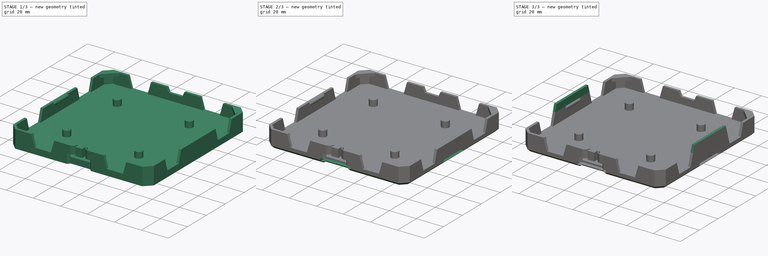
[diagram: build sequence overview — one tinted view per stage of 3, left to right]
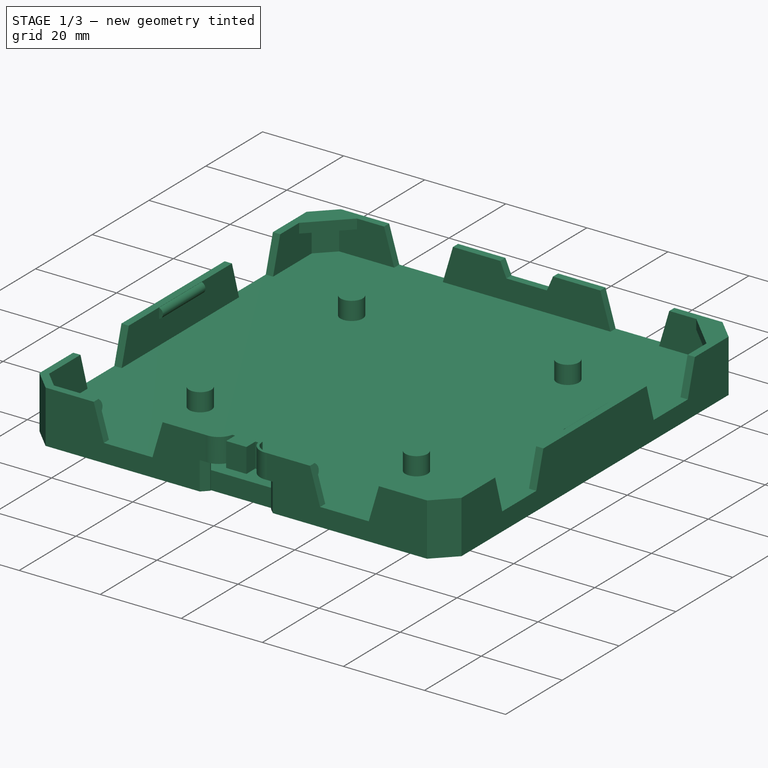
[diagram: stage 1 of 3 — iso view after this stage's code; geometry added in this stage tinted green]
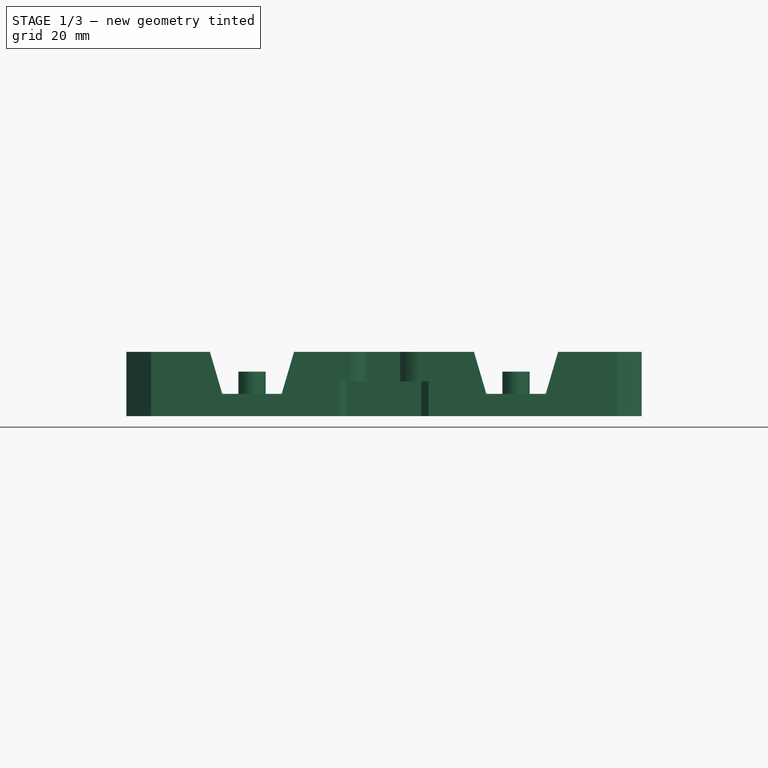
[diagram: stage 1 of 3 — front view after this stage's code; geometry added in this stage tinted green]
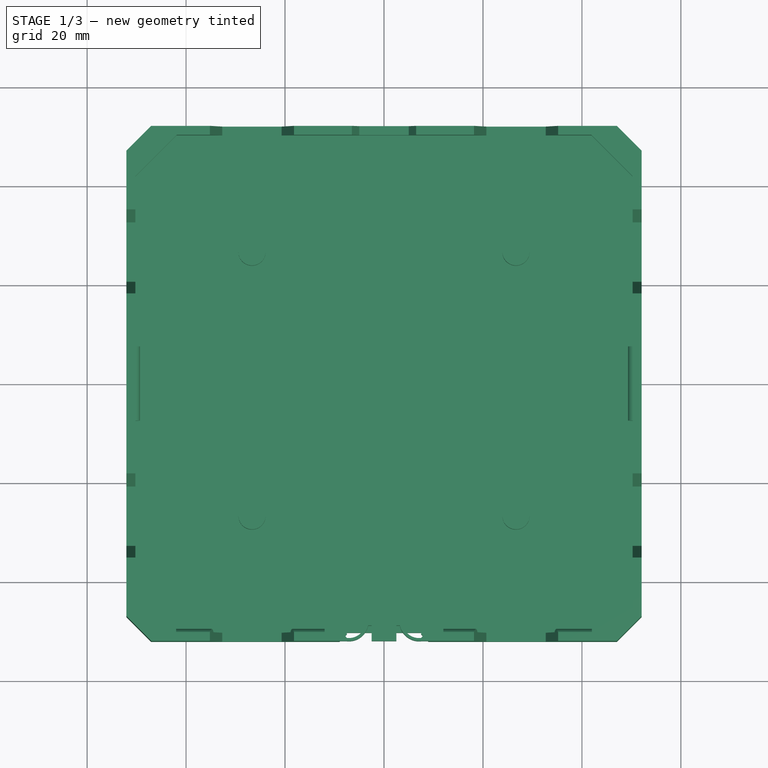
[diagram: stage 1 of 3 — top view after this stage's code; geometry added in this stage tinted green]
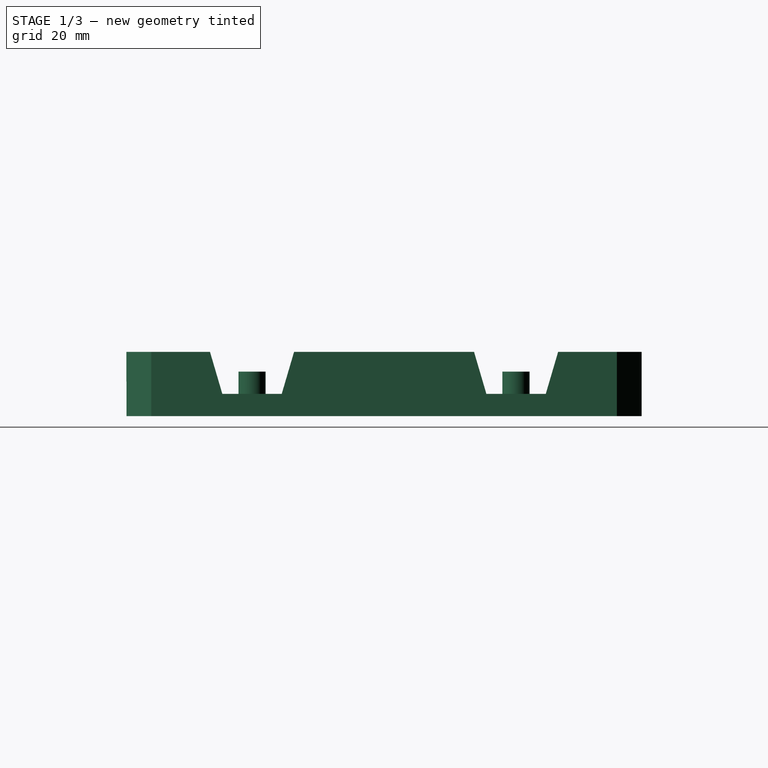
[diagram: stage 1 of 3 — right view after this stage's code; geometry added in this stage tinted green]
FCSTD DOCUMENT  (FreeCAD 0.21R33771 (Git))
Label: 3DFDM_Base
License: All rights reserved
LicenseURL: https://en.wikipedia.org/wiki/All_rights_reserved
objects: Sketcher::SketchObject×18, PartDesign::Pad×7, PartDesign::Pocket×6, PartDesign::Mirrored×5, PartDesign::Plane×3, PartDesign::PolarPattern×2, PartDesign::Body×1, PartDesign::SubtractivePipe×1
note: 57 computed .brp shape members not serialized (recipe doc carries the construction recipe); baked Part::Feature solids carry a one-line shape summary decoded from their .brp

FEATURE [Sketcher::SketchObject] Sketch
  FullyConstrained = true
  MapMode = 5
  Support = -> [XY_Plane]
  sketch-geometry (9):
    g0: LineSegment StartX=-52.05 StartY=-47.05 StartZ=0 EndX=-52.05 EndY=47.05 EndZ=0
    g1: LineSegment StartX=-47.05 StartY=52.05 StartZ=0 EndX=47.05 EndY=52.05 EndZ=0
    g2: LineSegment StartX=52.05 StartY=47.05 StartZ=0 EndX=52.05 EndY=-47.05 EndZ=0
    g3: LineSegment StartX=47.05 StartY=-52.05 StartZ=0 EndX=-47.05 EndY=-52.05 EndZ=0
    g4: GeomPoint X=0 Y=0 Z=0
    g5: LineSegment StartX=-47.05 StartY=52.05 StartZ=0 EndX=-52.05 EndY=47.05 EndZ=0
    g6: LineSegment StartX=-52.05 StartY=-47.05 StartZ=0 EndX=-47.05 EndY=-52.05 EndZ=0
    g7: LineSegment StartX=47.05 StartY=52.05 StartZ=0 EndX=52.05 EndY=47.05 EndZ=0
    g8: LineSegment StartX=52.05 StartY=-47.05 StartZ=0 EndX=47.05 EndY=-52.05 EndZ=0
  constraints (23):
    c: Horizontal(g1)
    c: Horizontal(g3)
    c: Vertical(g0)
    c: Vertical(g2)
    c: Coincident(g4,g-1)
    c: Coincident(g1,g5)
    c: Coincident(g0,g5)
    c: Coincident(g1,g7)
    c: Coincident(g2,g7)
    c: Coincident(g2,g8)
    c: Coincident(g3,g8)
    c: Coincident(g3,g6)
    c: Coincident(g0,g6)
    c: DistanceX(g0,g2) = 104.1
    c: Equal(g1,g2)
    c: Equal(g2,g3)
    c: Equal(g3,g0)
    c: DistanceY(g0,g1) = 5
    c: DistanceX(g0,g1) = 5
    c: Symmetric(g3,g1,g-1)
    c: Symmetric(g0,g2,g-2)
    c: Equal(g5,g6)
    c: Equal(g6,g8)
FEATURE [PartDesign::Pad] Pad
  Direction = (0,0,1)
  Length = 10
  Length2 = 3
  Profile = -> Sketch
  ReferenceAxis = -> Sketch [N_Axis]
  Type = 4
FEATURE [Sketcher::SketchObject] Sketch001
  FullyConstrained = true
  MapMode = 5
  Support = -> [XY_Plane]
  sketch-geometry (25):
    g0: LineSegment StartX=-45 StartY=-37.9289 StartZ=0 EndX=-45 EndY=37.9289 EndZ=0
    g1: LineSegment StartX=-37.9289 StartY=45 StartZ=0 EndX=37.9289 EndY=45 EndZ=0
    g2: LineSegment StartX=45 StartY=37.9289 StartZ=0 EndX=45 EndY=-37.9289 EndZ=0
    g3: LineSegment StartX=37.9289 StartY=-45 StartZ=0 EndX=-37.9289 EndY=-45 EndZ=0
    g4: GeomPoint X=0 Y=0 Z=0
    g5: LineSegment StartX=37.9289 StartY=45 StartZ=0 EndX=52.0711 EndY=59.1421 EndZ=0
    g6: LineSegment StartX=52.0711 StartY=59.1421 StartZ=0 EndX=59.1421 EndY=52.0711 EndZ=0
    g7: LineSegment StartX=59.1421 StartY=52.0711 StartZ=0 EndX=45 EndY=37.9289 EndZ=0
    g8: LineSegment StartX=-45 StartY=-37.9289 StartZ=0 EndX=-59.1421 EndY=-52.0711 EndZ=0
    g9: LineSegment StartX=-59.1421 StartY=-52.0711 StartZ=0 EndX=-52.0711 EndY=-59.1421 EndZ=0
    g10: LineSegment StartX=-52.0711 StartY=-59.1421 StartZ=0 EndX=-37.9289 EndY=-45 EndZ=0
    g11: LineSegment StartX=37.9289 StartY=-45 StartZ=0 EndX=52.0711 EndY=-59.1421 EndZ=0
    g12: LineSegment StartX=52.0711 StartY=-59.1421 StartZ=0 EndX=59.1421 EndY=-52.0711 EndZ=0
    g13: LineSegment StartX=59.1421 StartY=-52.0711 StartZ=0 EndX=45 EndY=-37.9289 EndZ=0
    g14: LineSegment StartX=-45 StartY=37.9289 StartZ=0 EndX=-59.1421 EndY=52.0711 EndZ=0
    g15: LineSegment StartX=-59.1421 StartY=52.0711 StartZ=0 EndX=-52.0711 EndY=59.1421 EndZ=0
    g16: LineSegment StartX=-52.0711 StartY=59.1421 StartZ=0 EndX=-37.9289 EndY=45 EndZ=0
    g17: LineSegment StartX=-37.9289 StartY=45 StartZ=0 EndX=45 EndY=-37.9289 EndZ=0
    g18: LineSegment StartX=37.9289 StartY=-45 StartZ=0 EndX=-45 EndY=37.9289 EndZ=0
    g19: LineSegment StartX=-45 StartY=-37.9289 StartZ=0 EndX=37.9289 EndY=45 EndZ=0
    g20: LineSegment StartX=45 StartY=37.9289 StartZ=0 EndX=-37.9289 EndY=-45 EndZ=0
    g21: GeomPoint X=0 Y=7.07107 Z=0
    g22: GeomPoint X=7.07107 Y=0 Z=0
    g23: GeomPoint X=-7.07107 Y=1.2e-15 Z=0
    g24: GeomPoint X=0 Y=-7.07107 Z=0
  constraints (64):
    c: Horizontal(g1)
    c: Horizontal(g3)
    c: Vertical(g0)
    c: Vertical(g2)
    c: Coincident(g4,g-1)
    c: Coincident(g6,g5)
    c: Coincident(g7,g6)
    c: Coincident(g9,g8)
    c: Coincident(g10,g9)
    c: Coincident(g12,g11)
    c: Coincident(g13,g12)
    c: Coincident(g15,g14)
    c: Coincident(g16,g15)
    c: Coincident(g17,g16)
    c: Coincident(g17,g13)
    c: Coincident(g18,g14)
    c: Coincident(g19,g8)
    c: Coincident(g19,g5)
    c: Coincident(g7,g20)
    c: Coincident(g11,g18)
    c: Coincident(g10,g20)
    c: Parallel(g14,g16)
    c: Parallel(g16,g17)
    c: Parallel(g17,g18)
    c: Parallel(g18,g11)
    c: Parallel(g11,g13)
    c: Parallel(g5,g7)
    c: Parallel(g7,g20)
    c: Parallel(g20,g19)
    c: Parallel(g19,g8)
    c: Parallel(g8,g10)
    c: Perpendicular(g5,g6)
    c: Perpendicular(g14,g15)
    c: Perpendicular(g12,g11)
    c: Perpendicular(g8,g9)
    c: PointOnObject(g21,g19)
    c: PointOnObject(g22,g20)
    c: PointOnObject(g23,g19)
    c: PointOnObject(g24,g18)
    c: PointOnObject(g21,g17)
    c: PointOnObject(g21,g-2)
    c: PointOnObject(g22,g17)
    c: PointOnObject(g22,g-1)
    c: PointOnObject(g24,g20)
    c: PointOnObject(g23,g18)
    c: Symmetric(g21,g24,g4)
    c: Angle(g-1,g19) = 0.785398
    c: Horizontal(g15,g5)
    c: Distance(g6) = 10
    c: Distance(g7) = 20
    c: Equal(g13,g10)
    c: Equal(g10,g7)
    c: Coincident(g1,g5)
    c: Coincident(g2,g7)
    c: Coincident(g0,g14)
    c: Coincident(g1,g16)
    c: Coincident(g3,g11)
    c: Coincident(g2,g13)
    c: Coincident(g3,g10)
    c: Coincident(g0,g8)
    c: DistanceX(g0,g2) = 90
    c: DistanceY(g3,g1) = 90
    c: Equal(g13,g11)
    c: Equal(g8,g10)
FEATURE [PartDesign::Plane] DatumPlane
  AttachmentOffset = pos=(0,0,10) rot=(0,0,1;0rad)
  Length = 124.922
  MapMode = 5
  Placement = pos=(0,0,10) rot=(0,0,1;0rad)
  ResizeMode = 0
  Support = -> [XY_Plane]
  Width = 124.941
FEATURE [Sketcher::SketchObject] Sketch002
  FullyConstrained = true
  MapMode = 5
  Placement = pos=(0,0,10) rot=(0,0,1;0rad)
  Support = -> [DatumPlane]
  sketch-geometry (9):
    g0: LineSegment StartX=-50.25 StartY=-46.25 StartZ=0 EndX=-50.25 EndY=46.25 EndZ=0
    g1: LineSegment StartX=-46.25 StartY=50.25 StartZ=0 EndX=46.25 EndY=50.25 EndZ=0
    g2: LineSegment StartX=50.25 StartY=46.25 StartZ=0 EndX=50.25 EndY=-46.25 EndZ=0
    g3: LineSegment StartX=46.25 StartY=-50.25 StartZ=0 EndX=-46.25 EndY=-50.25 EndZ=0
    g4: GeomPoint X=0 Y=0 Z=0
    g5: LineSegment StartX=-50.25 StartY=46.25 StartZ=0 EndX=-46.25 EndY=50.25 EndZ=0
    g6: LineSegment StartX=46.25 StartY=50.25 StartZ=0 EndX=50.25 EndY=46.25 EndZ=0
    g7: LineSegment StartX=50.25 StartY=-46.25 StartZ=0 EndX=46.25 EndY=-50.25 EndZ=0
    g8: LineSegment StartX=-50.25 StartY=-46.25 StartZ=0 EndX=-46.25 EndY=-50.25 EndZ=0
  constraints (23):
    c: Horizontal(g1)
    c: Horizontal(g3)
    c: Vertical(g2)
    c: Coincident(g4,g-1)
    c: Coincident(g0,g5)
    c: Coincident(g1,g5)
    c: Coincident(g1,g6)
    c: Coincident(g2,g7)
    c: Coincident(g3,g7)
    c: Coincident(g3,g8)
    c: Coincident(g0,g8)
    c: Equal(g5,g6)
    c: Equal(g6,g7)
    c: Equal(g7,g8)
    c: Coincident(g2,g6)
    c: DistanceX(g0,g2) = 100.5
    c: Symmetric(g0,g2,g-2)
    c: Symmetric(g0,g0,g-1)
    c: Equal(g0,g1)
    c: Equal(g1,g2)
    c: Equal(g2,g3)
    c: DistanceY(g0,g1) = 4
    c: DistanceX(g0,g1) = 4
FEATURE [PartDesign::Pocket] Pocket001  label="Shell"
  BaseFeature = -> Pad
  Direction = (0,0,-1)
  Length = 8.5
  Length2 = 5
  Profile = -> Sketch002
  ReferenceAxis = -> Sketch002 [N_Axis]
  Type = 0
FEATURE [Sketcher::SketchObject] Sketch003
  FullyConstrained = true
  MapMode = 5
  Support = -> [XY_Plane]
  sketch-geometry (2):
    g0: Circle CenterX=-26.67 CenterY=26.67 CenterZ=0 NormalX=0 NormalY=0 NormalZ=1 AngleXU=0 Radius=2.75
    g1: Circle CenterX=-26.67 CenterY=-26.67 CenterZ=0 NormalX=0 NormalY=0 NormalZ=1 AngleXU=0 Radius=2.75
  constraints (5):
    c: Equal(g0,g1)
    c: Diameter(g0) = 5.5
    c: Symmetric(g0,g1,g-1)
    c: DistanceX(g0,g-1) = 26.67
    c: DistanceY(g1,g0) = 53.34
FEATURE [Sketcher::SketchObject] Sketch004
  FullyConstrained = true
  MapMode = 2
  Placement = pos=(0,0,10) rot=(0,0,1;0rad)
  Support = -> [DatumPlane]
  sketch-geometry (8):
    g0: LineSegment StartX=-7.5 StartY=-51.45 StartZ=0 EndX=-7.5 EndY=-55.25 EndZ=0
    g1: LineSegment StartX=-7.5 StartY=-55.25 StartZ=0 EndX=7.5 EndY=-55.25 EndZ=0
    g2: LineSegment StartX=7.5 StartY=-55.25 StartZ=0 EndX=7.5 EndY=-51.45 EndZ=0
    g3: LineSegment StartX=7.5 StartY=-50.25 StartZ=0 EndX=-7.5 EndY=-50.25 EndZ=0
    g4: LineSegment StartX=-7.5 StartY=-51.45 StartZ=0 EndX=-8.5 EndY=-50.25 EndZ=0
    g5: LineSegment StartX=-8.5 StartY=-50.25 StartZ=0 EndX=-7.5 EndY=-50.25 EndZ=0
    g6: LineSegment StartX=7.5 StartY=-51.45 StartZ=0 EndX=8.5 EndY=-50.25 EndZ=0
    g7: LineSegment StartX=8.5 StartY=-50.25 StartZ=0 EndX=7.5 EndY=-50.25 EndZ=0
  constraints (23):
    c: Coincident(g0,g1)
    c: Coincident(g1,g2)
    c: Horizontal(g1)
    c: Vertical(g0)
    c: Vertical(g2)
    c: DistanceY(g2,g3) = 5
    c: DistanceX(g3,g3) = 15
    c: DistanceY(g3,g-1) = 50.25
    c: Symmetric(g3,g3,g-2)
    c: Coincident(g5,g4)
    c: Coincident(g5,g3)
    c: Horizontal(g5)
    c: Coincident(g7,g6)
    c: Horizontal(g7)
    c: Equal(g7,g5)
    c: DistanceX(g5,g5) = 1
    c: DistanceY(g4,g3) = 1.2
    c: Horizontal(g4,g6)
    c: Coincident(g0,g4)
    c: Coincident(g2,g6)
    c: Vertical(g0,g3)
    c: Vertical(g2,g3)
    c: Coincident(g3,g7)
FEATURE [PartDesign::Pocket] Pocket002  label="Pocket_for_button"
  BaseFeature = -> Pocket001
  Direction = (0,0,-1)
  Length = 6
  Length2 = 5
  Profile = -> Sketch004
  ReferenceAxis = -> Sketch004 [N_Axis]
  Refine = true
  Type = 0
FEATURE [Sketcher::SketchObject] Sketch005
  FullyConstrained = true
  MapMode = 5
  Placement = pos=(0,0,10) rot=(0,0,1;0rad)
  Support = -> [DatumPlane]
  sketch-geometry (13):
    g0: LineSegment StartX=-2.5 StartY=-48.9 StartZ=0 EndX=-2.5 EndY=-52.05 EndZ=0
    g1: LineSegment StartX=2.5 StartY=-48.9 StartZ=0 EndX=2.5 EndY=-52.05 EndZ=0
    g2: LineSegment StartX=-2.5 StartY=-52.05 StartZ=0 EndX=2.5 EndY=-52.05 EndZ=0
    g3: LineSegment StartX=7.5 StartY=-51.4462 StartZ=0 EndX=7.5 EndY=-52.05 EndZ=0
    g4: LineSegment StartX=-7.5 StartY=-51.4462 StartZ=0 EndX=-7.5 EndY=-52.05 EndZ=0
    g5: LineSegment StartX=-2.5 StartY=-48.9 StartZ=0 EndX=-3.2 EndY=-48.9 EndZ=0
    g6: LineSegment StartX=2.5 StartY=-48.9 StartZ=0 EndX=3.2 EndY=-48.9 EndZ=0
    g7: LineSegment StartX=-3.71859 StartY=-48.1 StartZ=0 EndX=3.71859 EndY=-48.1 EndZ=0
    g8: ArcOfCircle CenterX=-7.08983 CenterY=-48.1 CenterZ=0 NormalX=0 NormalY=0 NormalZ=1 AngleXU=0 Radius=3.97124 StartAngle=4.60892 EndAngle=6.08035
    g9: ArcOfCircle CenterX=-7.08983 CenterY=-48.1 CenterZ=0 NormalX=0 NormalY=0 NormalZ=1 AngleXU=0 Radius=3.37124 StartAngle=4.59042 EndAngle=6.28319
    g10: ArcOfCircle CenterX=7.08983 CenterY=-48.1 CenterZ=0 NormalX=0 NormalY=0 NormalZ=1 AngleXU=0 Radius=3.97124 StartAngle=3.34443 EndAngle=4.81586
    g11: ArcOfCircle CenterX=7.08983 CenterY=-48.1 CenterZ=0 NormalX=0 NormalY=0 NormalZ=1 AngleXU=0 Radius=3.37124 StartAngle=3.14159 EndAngle=4.83436
    g12: LineSegment StartX=-4.35412 StartY=-50.9787 StartZ=0 EndX=-4.76745 EndY=-50.5437 EndZ=0
  constraints (40):
    c: Vertical(g0)
    c: Vertical(g1)
    c: Symmetric(g2,g2,g-2)
    c: DistanceX(g2,g2) = 5
    c: Symmetric(g4,g3,g-2)
    c: DistanceY(g3,g-1) = 52.05
    c: Vertical(g3)
    c: Vertical(g4)
    c: DistanceX(g4,g3) = 15
    c: Horizontal(g5)
    c: Horizontal(g6)
    c: Coincident(g1,g6)
    c: Coincident(g0,g5)
    c: Equal(g5,g6)
    c: DistanceY(g6,g7) = 0.8
    c: Horizontal(g1,g0)
    c: Coincident(g0,g2)
    c: Symmetric(g7,g7,g-2)
    c: DistanceY(g7,g-1) = 48.1
    c: Horizontal(g0,g4)
    c: Coincident(g1,g2)
    c: DistanceX(g5,g5) = 0.7
    c: Coincident(g9,g8)
    c: Coincident(g11,g10)
    c: Diameter(g8) = 7.94248
    c: Coincident(g8,g4)
    c: Coincident(g9,g7)
    c: Coincident(g10,g3)
    c: Coincident(g11,g7)
    c: Perpendicular(g9,g7)
    c: Coincident(g8,g5)
    c: Perpendicular(g11,g7)
    c: Coincident(g6,g10)
    c: PointOnObject(g12,g8)
    c: PointOnObject(g12,g9)
    c: Perpendicular(g8,g12)
    c: Distance(g12) = 0.6
    c: Coincident(g4,g9)
    c: Coincident(g3,g11)
    c: DistanceX(g12) = -4.76745
FEATURE [PartDesign::Pad] Pad002  label="Button mechanism"
  BaseFeature = -> Pocket002
  Direction = (0,0,1)
  Length = 6
  Length2 = 10
  Profile = -> Sketch005
  ReferenceAxis = -> Sketch005 [N_Axis]
  Refine = true
  Reversed = true
  Type = 0
FEATURE [Sketcher::SketchObject] Sketch008
  FullyConstrained = true
  MapMode = 5
  Placement = pos=(0,0,10) rot=(0,0,1;0rad)
  Support = -> [DatumPlane]
  sketch-geometry (4):
    g0: LineSegment StartX=-52.05 StartY=40.05 StartZ=0 EndX=-40.05 EndY=52.05 EndZ=0
    g1: LineSegment StartX=-40.05 StartY=52.05 StartZ=0 EndX=-47.05 EndY=52.05 EndZ=0
    g2: LineSegment StartX=-47.05 StartY=52.05 StartZ=0 EndX=-52.05 EndY=47.05 EndZ=0
    g3: LineSegment StartX=-52.05 StartY=47.05 StartZ=0 EndX=-52.05 EndY=40.05 EndZ=0
  constraints (12):
    c: Coincident(g1,g0)
    c: Horizontal(g1)
    c: Coincident(g2,g1)
    c: Coincident(g3,g2)
    c: Coincident(g3,g0)
    c: Vertical(g3)
    c: Equal(g1,g3)
    c: Angle(g0,g3) = 0.785398
    c: DistanceY(g-1,g0) = 52.05
    c: DistanceX(g0,g-1) = 52.05
    c: DistanceY(g2,g1) = 5
    c: DistanceX(g1,g1) = 7
FEATURE [PartDesign::Pad] Pad003  label="Corner_z_holder"
  BaseFeature = -> Pad002
  Direction = (0,0,1)
  Length = 2.4
  Length2 = 10
  Profile = -> Sketch008
  ReferenceAxis = -> Sketch008 [N_Axis]
  Refine = true
  Reversed = true
  Type = 0
FEATURE [PartDesign::Mirrored] Mirrored001
  BaseFeature = -> Pad003
  MirrorPlane = -> Sketch008 [V_Axis]
  Originals = -> [Pad003]
  Refine = true
FEATURE [Sketcher::SketchObject] Sketch009
  FullyConstrained = true
  MapMode = 5
  Placement = pos=(0,0,0) rot=(1,0,0;1.5708rad)
  Support = -> [XZ_Plane]
  sketch-geometry (2):
    g0: Circle CenterX=-50.6 CenterY=8.7 CenterZ=0 NormalX=0 NormalY=0 NormalZ=1 AngleXU=0 Radius=1.3
    g1: GeomPoint X=-50.6 Y=10 Z=0
  constraints (5):
    c: DistanceX(g0,g-1) = 50.6
    c: Diameter(g0) = 2.6
    c: PointOnObject(g1,g0)
    c: Vertical(g1,g0)
    c: DistanceY(g-1,g1) = 10
FEATURE [PartDesign::Plane] DatumPlane001
  AttachmentOffset = pos=(0,0,27) rot=(0,0,1;0rad)
  Length = 118.549
  MapMode = 5
  Placement = pos=(27,-6e-15,6e-15) rot=(0.57735,0.57735,0.57735;2.0944rad)
  ResizeMode = 0
  Support = -> [YZ_Plane]
  Width = 64.4304
FEATURE [Sketcher::SketchObject] Sketch010
  FullyConstrained = true
  MapMode = 5
  Placement = pos=(27,-6e-15,6e-15) rot=(0.57735,0.57735,0.57735;2.0944rad)
  Support = -> [DatumPlane001]
  sketch-geometry (3):
    g0: ArcOfCircle CenterX=-50.9 CenterY=8.7 CenterZ=0 NormalX=0 NormalY=0 NormalZ=1 AngleXU=0 Radius=1.3 StartAngle=4.71239 EndAngle=7.85398
    g1: GeomPoint X=-50.9 Y=10 Z=0
    g2: LineSegment StartX=-50.9 StartY=10 StartZ=0 EndX=-50.9 EndY=7.4 EndZ=0
  constraints (8):
    c: Vertical(g1,g0)
    c: DistanceY(g-1,g1) = 10
    c: Diameter(g0) = 2.6
    c: DistanceX(g0,g-1) = 50.9
    c: Coincident(g2,g1)
    c: Vertical(g2)
    c: Coincident(g0,g2)
    c: Coincident(g0,g2)
FEATURE [PartDesign::Pad] Pad005  label="Wall_z_holder"
  BaseFeature = -> Mirrored001
  Direction = (1,-1e-16,1e-16)
  Length = 30
  Length2 = 10
  Midplane = true
  Profile = -> Sketch010
  ReferenceAxis = -> Sketch010 [N_Axis]
  Refine = true
  Type = 0
FEATURE [PartDesign::Mirrored] Mirrored003
  BaseFeature = -> Pad005
  MirrorPlane = -> YZ_Plane
  Originals = -> [Pad005]
FEATURE [Sketcher::SketchObject] Sketch011
  FullyConstrained = true
  MapMode = 5
  Placement = pos=(0,0,0) rot=(0.57735,0.57735,0.57735;2.0944rad)
  Support = -> [YZ_Plane]
  sketch-geometry (10):
    g0: LineSegment StartX=-35.18 StartY=10 StartZ=0 EndX=-32.68 EndY=1.5 EndZ=0
    g1: LineSegment StartX=-32.68 StartY=1.5 StartZ=0 EndX=-20.68 EndY=1.5 EndZ=0
    g2: LineSegment StartX=-20.68 StartY=1.5 StartZ=0 EndX=-18.18 EndY=10 EndZ=0
    g3: LineSegment StartX=-18.18 StartY=10 StartZ=0 EndX=-35.18 EndY=10 EndZ=0
    g4: LineSegment StartX=18.18 StartY=10 StartZ=0 EndX=35.18 EndY=10 EndZ=0
    g5: LineSegment StartX=35.18 StartY=10 StartZ=0 EndX=32.68 EndY=1.5 EndZ=0
    g6: LineSegment StartX=32.68 StartY=1.5 StartZ=0 EndX=20.68 EndY=1.5 EndZ=0
    g7: LineSegment StartX=20.68 StartY=1.5 StartZ=0 EndX=18.18 EndY=10 EndZ=0
    g8: GeomPoint X=-26.68 Y=1.5 Z=0
    g9: GeomPoint X=26.68 Y=1.5 Z=0
  constraints (26):
    c: Coincident(g1,g0)
    c: Horizontal(g1)
    c: Coincident(g2,g1)
    c: Coincident(g3,g2)
    c: Coincident(g3,g0)
    c: Horizontal(g3)
    c: Equal(g2,g0)
    c: DistanceY(g-1,g2) = 10
    c: DistanceY(g-1,g1) = 1.5
    c: DistanceX(g1,g1) = 12
    c: DistanceX(g3,g3) = 17
    c: Horizontal(g4)
    c: Coincident(g5,g4)
    c: Coincident(g6,g5)
    c: Coincident(g7,g6)
    c: Coincident(g7,g4)
    c: Equal(g5,g7)
    c: Horizontal(g4,g2)
    c: Equal(g4,g3)
    c: Equal(g1,g6)
    c: Horizontal(g6)
    c: Symmetric(g6,g5,g9)
    c: Symmetric(g1,g0,g8)
    c: Symmetric(g8,g9,g-2)
    c: DistanceX(g8,g-1) = 26.68
    c: Angle(g2,g1) = 1.85685
FEATURE [PartDesign::Pocket] Pocket005  label="Interface_opening"
  BaseFeature = -> Mirrored003
  Direction = (-1,2e-16,-3e-16)
  Length = 5
  Length2 = 5
  Profile = -> Sketch011
  ReferenceAxis = -> Sketch011 [N_Axis]
  Refine = true
  Reversed = true
  Type = 1
FEATURE [Sketcher::SketchObject] Sketch012
  FullyConstrained = true
  MapMode = 5
  Placement = pos=(0,0,0) rot=(1,0,0;1.5708rad)
  Support = -> [XZ_Plane]
  sketch-geometry (4):
    g0: LineSegment StartX=-6.5 StartY=10 StartZ=0 EndX=-5 EndY=6.5 EndZ=0
    g1: LineSegment StartX=-5 StartY=6.5 StartZ=0 EndX=5 EndY=6.5 EndZ=0
    g2: LineSegment StartX=5 StartY=6.5 StartZ=0 EndX=6.5 EndY=10 EndZ=0
    g3: LineSegment StartX=6.5 StartY=10 StartZ=0 EndX=-6.5 EndY=10 EndZ=0
  constraints (11):
    c: Coincident(g1,g0)
    c: Coincident(g2,g1)
    c: Coincident(g3,g2)
    c: Coincident(g3,g0)
    c: Horizontal(g3)
    c: Equal(g0,g2)
    c: Symmetric(g1,g0,g-2)
    c: DistanceX(g1,g1) = 10
    c: DistanceY(g1,g2) = 3.5
    c: DistanceY(g-1,g2) = 10
    c: DistanceX(g3,g3) = 13
FEATURE [Sketcher::SketchObject] Sketch013
  FullyConstrained = true
  MapMode = 5
  Placement = pos=(0,0,10) rot=(0,0,1;0rad)
  sketch-geometry (18):
    g0: LineSegment StartX=-1.5 StartY=-48.1 StartZ=0 EndX=-1.5 EndY=-48.1 EndZ=0
    g1: LineSegment StartX=-1.5 StartY=-48.1 StartZ=0 EndX=1.5 EndY=-48.1 EndZ=0
    g2: LineSegment StartX=1.5 StartY=-48.1 StartZ=0 EndX=1.5 EndY=-48.1 EndZ=0
    g3: LineSegment StartX=-1.5 StartY=-48.1 StartZ=0 EndX=-2.5 EndY=-48.1 EndZ=0
    g4: LineSegment StartX=-2.5 StartY=-48.1 StartZ=0 EndX=-2.5 EndY=-51.25 EndZ=0
    g5: LineSegment StartX=1.5 StartY=-48.1 StartZ=0 EndX=2.5 EndY=-48.1 EndZ=0
    g6: LineSegment StartX=2.5 StartY=-48.1 StartZ=0 EndX=2.5 EndY=-51.25 EndZ=0
    g7: LineSegment StartX=-2.5 StartY=-54.05 StartZ=0 EndX=2.5 EndY=-54.05 EndZ=0
    g8: LineSegment StartX=-6.5 StartY=-51.25 StartZ=0 EndX=-2.5 EndY=-51.25 EndZ=0
    g9: LineSegment StartX=6.5 StartY=-51.25 StartZ=0 EndX=2.5 EndY=-51.25 EndZ=0
    g10: LineSegment StartX=-7.5 StartY=-52.05 StartZ=0 EndX=-2.5 EndY=-52.05 EndZ=0
    g11: LineSegment StartX=-2.5 StartY=-52.05 StartZ=0 EndX=-2.5 EndY=-54.05 EndZ=0
    g12: LineSegment StartX=2.5 StartY=-52.05 StartZ=0 EndX=2.5 EndY=-54.05 EndZ=0
    g13: LineSegment StartX=7.5 StartY=-52.05 StartZ=0 EndX=2.5 EndY=-52.05 EndZ=0
    g14: LineSegment StartX=6.5 StartY=-51.25 StartZ=0 EndX=7.5 EndY=-50.25 EndZ=0
    g15: LineSegment StartX=7.5 StartY=-50.25 StartZ=0 EndX=7.5 EndY=-52.05 EndZ=0
    g16: LineSegment StartX=-6.5 StartY=-51.25 StartZ=0 EndX=-7.5 EndY=-50.25 EndZ=0
    g17: LineSegment StartX=-7.5 StartY=-50.25 StartZ=0 EndX=-7.5 EndY=-52.05 EndZ=0
  constraints (51):
    c: Vertical(g0)
    c: Coincident(g2,g1)
    c: Coincident(g0,g1)
    c: Vertical(g2)
    c: Coincident(g3,g0)
    c: Horizontal(g3)
    c: Coincident(g4,g3)
    c: Vertical(g4)
    c: Coincident(g5,g2)
    c: Horizontal(g5)
    c: Coincident(g6,g5)
    c: Vertical(g6)
    c: Coincident(g7,g11)
    c: Coincident(g7,g12)
    c: Symmetric(g0,g1,g-2)
    c: Symmetric(g11,g12,g-2)
    c: Horizontal(g2,g0)
    c: DistanceX(g1,g1) = 3
    c: DistanceX(g7,g7) = 5
    c: Horizontal(g8)
    c: Horizontal(g9)
    c: Horizontal(g8,g9)
    c: Symmetric(g10,g13,g-2)
    c: DistanceY(g13,g-1) = 52.05
    c: Horizontal(g10)
    c: Horizontal(g12,g11)
    c: Coincident(g4,g8)
    c: Coincident(g6,g9)
    c: Vertical(g12)
    c: Vertical(g11)
    c: Vertical(g4,g11)
    c: Vertical(g6,g12)
    c: DistanceY(g2,g2) = 0
    c: Equal(g8,g9)
    c: DistanceY(g12,g12) = 2
    c: DistanceY(g5,g-1) = 48.1
    c: Coincident(g10,g11)
    c: Coincident(g13,g12)
    c: DistanceY(g13,g9) = 0.8
    c: Coincident(g14,g9)
    c: Coincident(g15,g14)
    c: Coincident(g15,g13)
    c: Coincident(g16,g8)
    c: Coincident(g17,g16)
    c: Coincident(g17,g10)
    c: Vertical(g15)
    c: Vertical(g17)
    c: DistanceX(g10,g13) = 15
    c: DistanceY(g15,g15) = 1.8
    c: Equal(g15,g17)
    c: DistanceX(g9,g14) = 1
FEATURE [PartDesign::PolarPattern] PolarPattern
  Angle = 360
  Axis = -> Sketch011 [V_Axis]
  BaseFeature = -> Pocket005
  Occurrences = 4
  Originals = -> [Pocket005]
FEATURE [PartDesign::Pocket] Pocket006  label="USB-C"
  BaseFeature = -> PolarPattern
  Direction = (0,1,2e-16)
  Length = 5
  Length2 = 5
  Profile = -> Sketch012
  ReferenceAxis = -> Sketch012 [N_Axis]
  Type = 1
FEATURE [PartDesign::Pad] Pad001  label="Screw_boss"
  BaseFeature = -> Pocket006
  Direction = (0,0,1)
  Length = 6
  Length2 = 10
  Profile = -> Sketch003
  ReferenceAxis = -> Sketch003 [N_Axis]
  Type = 0
FEATURE [PartDesign::Mirrored] Mirrored
  BaseFeature = -> Pad001
  MirrorPlane = -> Sketch003 [V_Axis]
  Originals = -> [Pad001]
  Refine = true
FEATURE [Sketcher::SketchObject] Sketch014
  FullyConstrained = true
  MapMode = 2
  Support = -> [XY_Plane]
  sketch-geometry (6):
    g0: LineSegment StartX=-7.5 StartY=-50.25 StartZ=0 EndX=-7.5 EndY=-50.55 EndZ=0
    g1: LineSegment StartX=7.5 StartY=-50.55 StartZ=0 EndX=7.5 EndY=-50.25 EndZ=0
    g2: LineSegment StartX=7.5 StartY=-50.25 StartZ=0 EndX=-7.5 EndY=-50.25 EndZ=0
    g3: LineSegment StartX=-7.5 StartY=-50.55 StartZ=0 EndX=-9 EndY=-52.05 EndZ=0
    g4: LineSegment StartX=-9 StartY=-52.05 StartZ=0 EndX=9 EndY=-52.05 EndZ=0
    g5: LineSegment StartX=9 StartY=-52.05 StartZ=0 EndX=7.5 EndY=-50.55 EndZ=0
  constraints (16):
    c: Vertical(g0)
    c: Vertical(g1)
    c: DistanceX(g2,g2) = 15
    c: DistanceY(g2,g-1) = 50.25
    c: Symmetric(g2,g2,g-2)
    c: Symmetric(g1,g0,g-2)
    c: Coincident(g0,g2)
    c: Coincident(g4,g3)
    c: Coincident(g5,g4)
    c: Horizontal(g3,g5)
    c: Symmetric(g4,g3,g-2)
    c: DistanceY(g3,g3) = 1.5
    c: Coincident(g1,g5)
    c: Coincident(g0,g3)
    c: DistanceY(g4,g-1) = 52.05
    c: Angle(g0,g3) = 2.35619
FEATURE [Sketcher::SketchObject] Sketch015  label="chamfer"
  FullyConstrained = true
  MapMode = 5
  Placement = pos=(0,0,0) rot=(1,0,0;1.5708rad)
  Support = -> [XZ_Plane]
  sketch-geometry (3):
    g0: LineSegment StartX=-52.05 StartY=-1 StartZ=0 EndX=-52.05 EndY=-3 EndZ=0
    g1: LineSegment StartX=-52.05 StartY=-1 StartZ=0 EndX=-50.05 EndY=-3 EndZ=0
    g2: LineSegment StartX=-52.05 StartY=-3 StartZ=0 EndX=-50.05 EndY=-3 EndZ=0
  constraints (9):
    c: Vertical(g0)
    c: DistanceY(g0,g0) = 2
    c: DistanceX(g0,g-1) = 52.05
    c: Coincident(g2,g1)
    c: Horizontal(g2)
    c: Equal(g2,g0)
    c: Coincident(g0,g1)
    c: Coincident(g0,g2)
    c: DistanceY(g0,g-1) = 1
FEATURE [Sketcher::SketchObject] Sketch016
  FullyConstrained = true
  MapMode = 5
  Placement = pos=(0,0,0) rot=(1,0,0;1.5708rad)
  Support = -> [XZ_Plane]
  sketch-geometry (7):
    g0: LineSegment StartX=-50.05 StartY=-0.5 StartZ=0 EndX=-53.55 EndY=-0.5 EndZ=0
    g1: LineSegment StartX=-55.05 StartY=-2 StartZ=0 EndX=-50.05 EndY=-2 EndZ=0
    g2: LineSegment StartX=-50.05 StartY=-2 StartZ=0 EndX=-50.05 EndY=-0.5 EndZ=0
    g3: GeomPoint X=-52.05 Y=-0.5 Z=0
    g4: LineSegment StartX=-55.05 StartY=-2 StartZ=0 EndX=-55.05 EndY=0.3 EndZ=0
    g5: ArcOfCircle CenterX=-54.3 CenterY=0.3 CenterZ=0 NormalX=0 NormalY=0 NormalZ=1 AngleXU=0 Radius=0.75 StartAngle=0 EndAngle=3.14159
    g6: LineSegment StartX=-53.55 StartY=-0.5 StartZ=0 EndX=-53.55 EndY=0.3 EndZ=0
  constraints (19):
    c: Horizontal(g1)
    c: Coincident(g2,g1)
    c: Coincident(g0,g2)
    c: Vertical(g2)
    c: PointOnObject(g3,g0)
    c: DistanceX(g3,g-1) = 52.05
    c: DistanceX(g1,g-1) = 50.05
    c: DistanceY(g2,g2) = 1.5
    c: DistanceX(g0,g3) = 1.5
    c: Coincident(g4,g1)
    c: Vertical(g4)
    c: Diameter(g5) = 1.5
    c: Coincident(g6,g0)
    c: Vertical(g6)
    c: Tangent(g5,g4) = 1.5708
    c: Tangent(g5,g6) = -1.5708
    c: Horizontal(g0)
    c: DistanceY(g1,g-1) = 2
    c: DistanceY(g4,g4) = 2.3
FEATURE [Sketcher::SketchObject] Sketch017
  FullyConstrained = true
  MapMode = 5
  Placement = pos=(0,0,0) rot=(1,0,0;1.5708rad)
  Support = -> [XZ_Plane]
  sketch-geometry (6):
    g0: LineSegment StartX=52.05 StartY=-0.5 StartZ=0 EndX=50.7 EndY=-0.5 EndZ=0
    g1: ArcOfCircle CenterX=49.8 CenterY=0.3 CenterZ=0 NormalX=0 NormalY=0 NormalZ=1 AngleXU=0 Radius=0.9 StartAngle=0 EndAngle=3.14159
    g2: LineSegment StartX=50.7 StartY=-0.5 StartZ=0 EndX=50.7 EndY=0.3 EndZ=0
    g3: LineSegment StartX=48.9 StartY=0.3 StartZ=0 EndX=48.9 EndY=-2 EndZ=0
    g4: LineSegment StartX=48.9 StartY=-2 StartZ=0 EndX=52.05 EndY=-2 EndZ=0
    g5: LineSegment StartX=52.05 StartY=-0.5 StartZ=0 EndX=52.05 EndY=-2 EndZ=0
  constraints (17):
    c: Coincident(g2,g0)
    c: Coincident(g4,g3)
    c: Coincident(g5,g0)
    c: Coincident(g4,g5)
    c: Horizontal(g4)
    c: Vertical(g3)
    c: Vertical(g2)
    c: Tangent(g1,g3) = -1.5708
    c: Tangent(g1,g2) = -1.5708
    c: Vertical(g5)
    c: DistanceY(g5,g5) = 1.5
    c: DistanceX(g-1,g0) = 52.05
    c: Diameter(g1) = 1.8
    c: DistanceX(g0,g0) = 1.35
    c: DistanceY(g4,g-1) = 2
    c: Horizontal(g0)
    c: DistanceY(g3,g3) = 2.3
FEATURE [Sketcher::SketchObject] Sketch018
  FullyConstrained = true
  MapMode = 5
  Placement = pos=(0,0,0) rot=(1,0,0;1.5708rad)
  Support = -> [XZ_Plane]
  sketch-geometry (8):
    g0: LineSegment StartX=-52.05 StartY=0.35 StartZ=0 EndX=-39.9624 EndY=0.35 EndZ=0
    g1: LineSegment StartX=-39.9624 StartY=0.35 StartZ=0 EndX=-38.75 EndY=1.05 EndZ=0
    g2: LineSegment StartX=-38.75 StartY=1.05 StartZ=0 EndX=-36.25 EndY=1.05 EndZ=0
    g3: LineSegment StartX=-36.25 StartY=1.05 StartZ=0 EndX=-36.25 EndY=-1.85 EndZ=0
    g4: LineSegment StartX=-36.25 StartY=-1.85 StartZ=0 EndX=-52.05 EndY=-1.85 EndZ=0
    g5: LineSegment StartX=-52.05 StartY=-1.85 StartZ=0 EndX=-52.05 EndY=0.35 EndZ=0
    g6: GeomPoint X=-52.05 Y=1.5 Z=0
    g7: GeomPoint X=-52.05 Y=-0.75 Z=0
  constraints (24):
    c: Horizontal(g0)
    c: Coincident(g1,g0)
    c: Coincident(g2,g1)
    c: Horizontal(g2)
    c: Coincident(g3,g2)
    c: Coincident(g4,g3)
    c: Horizontal(g4)
    c: Coincident(g5,g4)
    c: Vertical(g5)
    c: DistanceX(g0,g-1) = 52.05
    c: Coincident(g0,g5)
    c: Vertical(g3)
    c: DistanceY(g-1,g6) = 1.5
    c: Vertical(g6,g0)
    c: DistanceY(g5,g5) = 2.2
    c: Angle(g1,g0) = 2.61799
    c: DistanceX(g2,g2) = 2.5
    c: DistanceY(g0,g1) = 0.7
    c: DistanceX(g4,g4) = 15.8
    c: DistanceY(g3,g3) = 2.9
    c: Symmetric(g0,g4,g7)
    c: DistanceY(g7,g6) = 2.25
    c: DistanceY(g0,g6) = 1.15
    c: DistanceY(g1,g6) = 0.45
FEATURE [PartDesign::Plane] DatumPlane002
  AttachmentOffset = pos=(0,0,52.05) rot=(0,0,1;0rad)
  Length = 118.549
  MapMode = 5
  Placement = pos=(-52.05,1.16e-14,-1.16e-14) rot=(-0.57735,0.57735,0.57735;4.18879rad)
  ResizeMode = 0
  Support = -> [YZ_Plane]
  Width = 64.4304
FEATURE [Sketcher::SketchObject] Sketch021
  FullyConstrained = true
  MapMode = 5
  Placement = pos=(-52.05,1.16e-14,-1.16e-14) rot=(-0.57735,0.57735,0.57735;4.18879rad)
  Support = -> [DatumPlane002]
  sketch-geometry (4):
    g0: LineSegment StartX=-18.18 StartY=10 StartZ=0 EndX=-16.7094 EndY=15 EndZ=0
    g1: LineSegment StartX=-16.7094 StartY=15 StartZ=0 EndX=16.7094 EndY=15 EndZ=0
    g2: LineSegment StartX=16.7094 StartY=15 StartZ=0 EndX=18.18 EndY=10 EndZ=0
    g3: LineSegment StartX=-18.18 StartY=10 StartZ=0 EndX=18.18 EndY=10 EndZ=0
  constraints (10):
    c: Coincident(g1,g0)
    c: Coincident(g2,g1)
    c: Coincident(g3,g0)
    c: Coincident(g3,g2)
    c: Symmetric(g0,g1,g-2)
    c: Symmetric(g0,g2,g-2)
    c: Angle(g3,g0) = 1.28474
    c: DistanceY(g-1,g2) = 10
    c: DistanceX(g3,g3) = 36.36
    c: DistanceY(g0,g0) = 5
FEATURE [PartDesign::Body] Body  label="3DFDM_Base"
  Group = -> [Sketch,Pad,Sketch001,DatumPlane,Sketch002,Pocket001,Sketch003,Sketch004,Pocket002,Sketch005,Pad002,Sketch008,Pad003,Mirrored001,Sketch010,Pad005,Mirrored003,DatumPlane001,Sketch009,Sketch011,Pocket005,PolarPattern,Sketch012,Pocket006,Sketch013,Pad001,Mirrored,Mirrored002,Pad004,Sketch014,Pocket,Sketch015,Sketch016,Sketch017,Sketch018,Pocket007,SubtractivePipe,PolarPattern001,DatumPlane002,+3 more]
  Origin = -> Origin
  Tip = -> Mirrored004
FEATURE [PartDesign::Pad] Pad004  label="Wall_z_holder001"
  BaseFeature = -> Mirrored002
  Direction = (0,-1,-2e-16)
  Length = 15
  Length2 = 10
  Midplane = true
  Profile = -> Sketch009
  ReferenceAxis = -> Sketch009 [N_Axis]
  Refine = true
  Type = 0
FEATURE [PartDesign::Mirrored] Mirrored002
  BaseFeature = -> Mirrored
  MirrorPlane = -> Sketch009 [V_Axis]
  Originals = -> [Pad004]
  Refine = true
FEATURE [PartDesign::Pocket] Pocket  label="Cut_under_button"
  BaseFeature = -> Pad004
  Direction = (0,0,-1)
  Length = 3
  Length2 = 4
  Profile = -> Sketch014
  ReferenceAxis = -> Sketch014 [N_Axis]
  Refine = true
  Type = 4
FEATURE [PartDesign::Pocket] Pocket007
  BaseFeature = -> Pocket
  Direction = (0,1,2e-16)
  Length = 22
  Length2 = 5
  Midplane = true
  Profile = -> Sketch018
  ReferenceAxis = -> Sketch018 [N_Axis]
  Type = 0
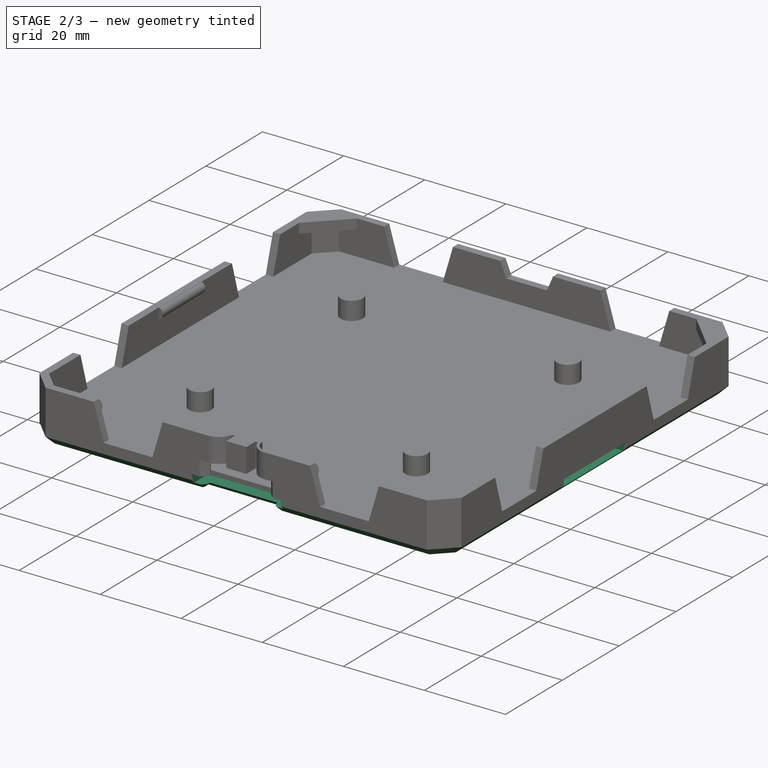
[diagram: stage 2 of 3 — iso view after this stage's code; geometry added in this stage tinted green]
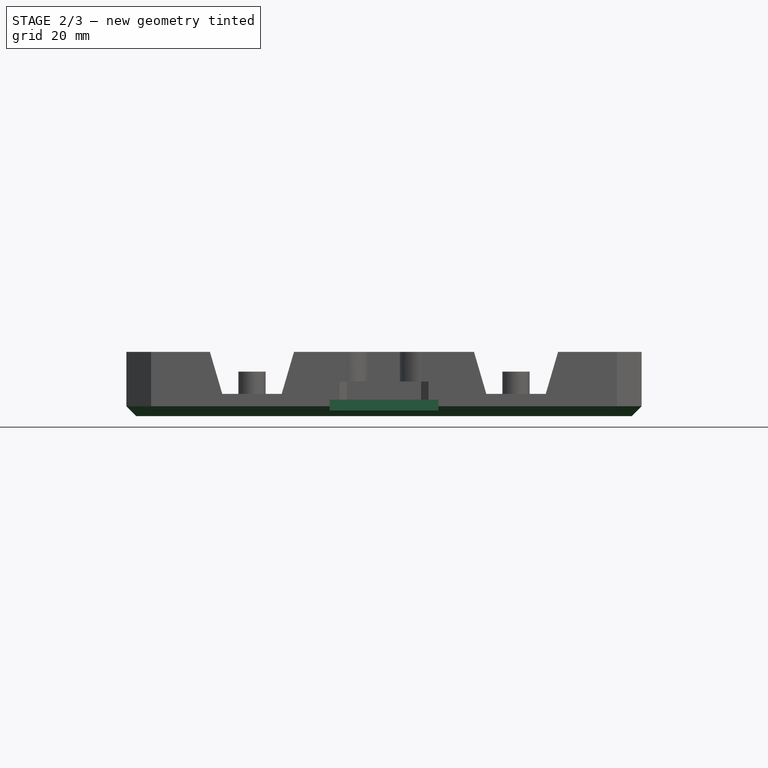
[diagram: stage 2 of 3 — front view after this stage's code; geometry added in this stage tinted green]
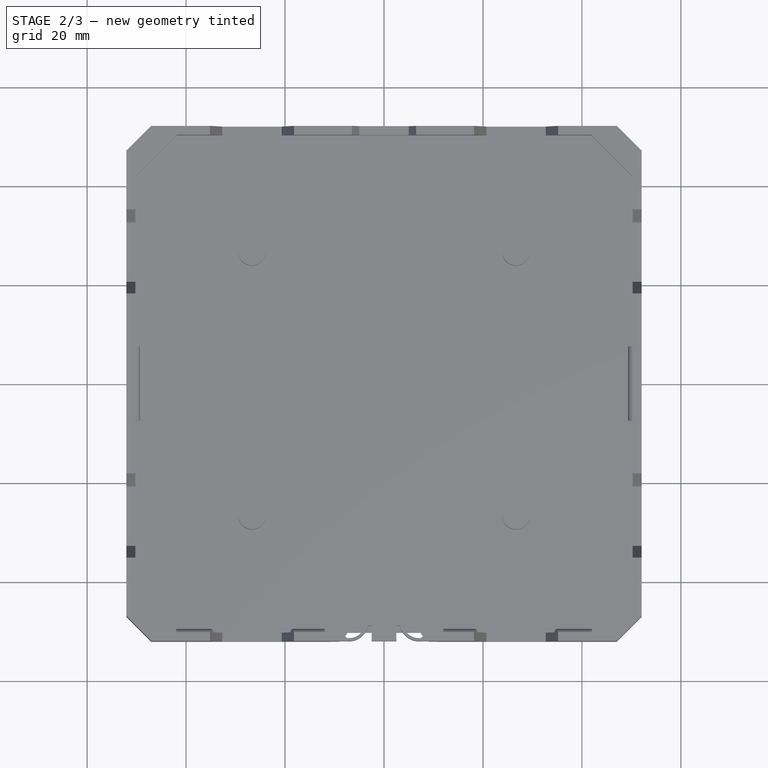
[diagram: stage 2 of 3 — top view after this stage's code; geometry added in this stage tinted green]
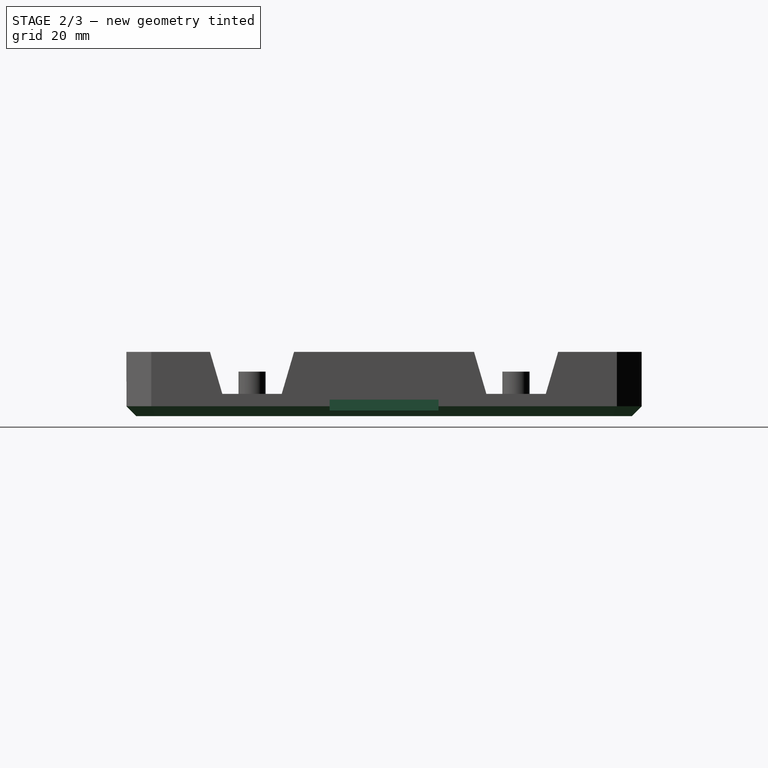
[diagram: stage 2 of 3 — right view after this stage's code; geometry added in this stage tinted green]
FEATURE [PartDesign::SubtractivePipe] SubtractivePipe  label="Chamfer"
  AuxilleryCurvelinear = true
  AuxillerySpineTangent = false
  BaseFeature = -> Pocket007
  Binormal = (0,0,0)
  Mode = 0
  Profile = -> Sketch015
  Spine = -> Pocket007 [Edge1,Edge14,Edge13,Edge2,Edge3,Edge4,Edge5,Edge6,Edge7,Edge12,Edge8,Edge9,Edge11,Edge10]
  SpineTangent = false
  Transformation = 0
  Transition = 1
FEATURE [PartDesign::PolarPattern] PolarPattern001
  Angle = 360
  Axis = -> Z_Axis
  BaseFeature = -> SubtractivePipe
  Occurrences = 4
  Originals = -> [Pocket007]
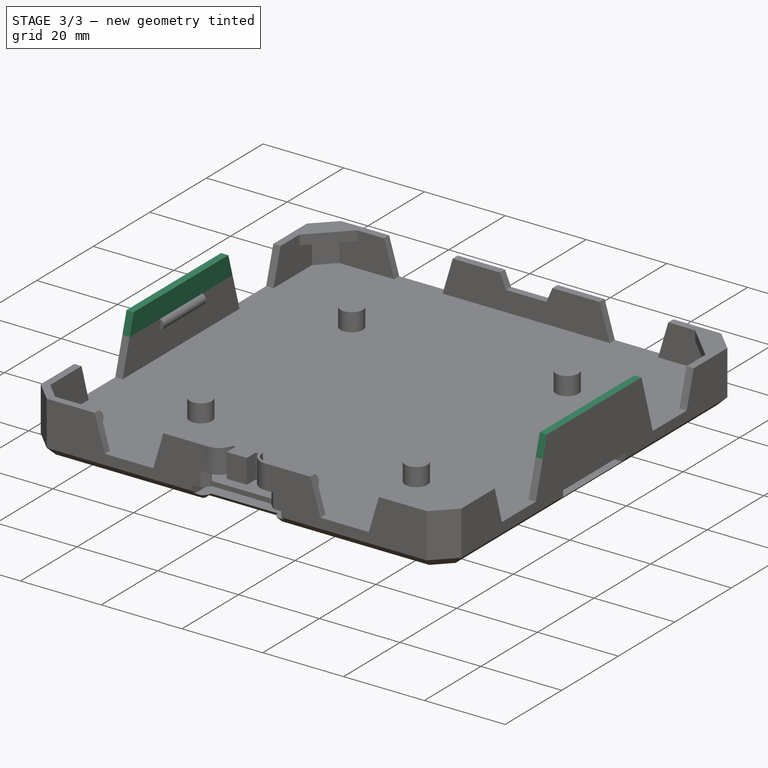
[diagram: stage 3 of 3 — iso view after this stage's code; geometry added in this stage tinted green]
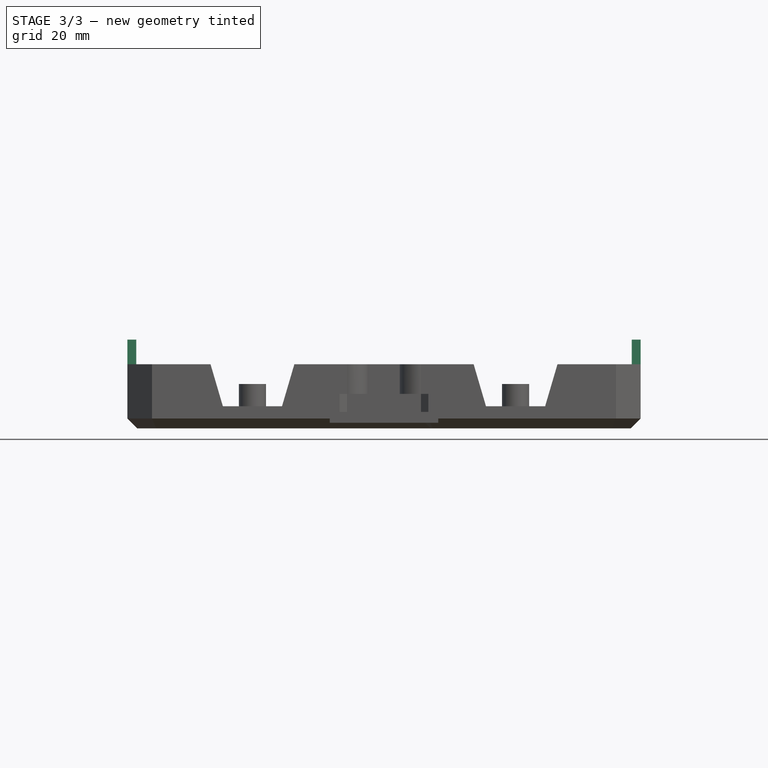
[diagram: stage 3 of 3 — front view after this stage's code; geometry added in this stage tinted green]
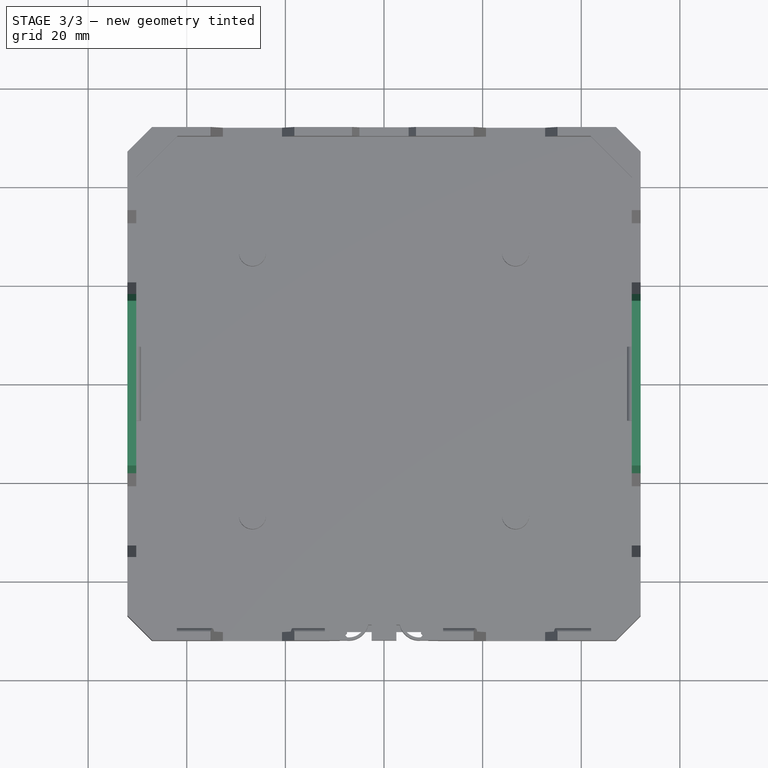
[diagram: stage 3 of 3 — top view after this stage's code; geometry added in this stage tinted green]
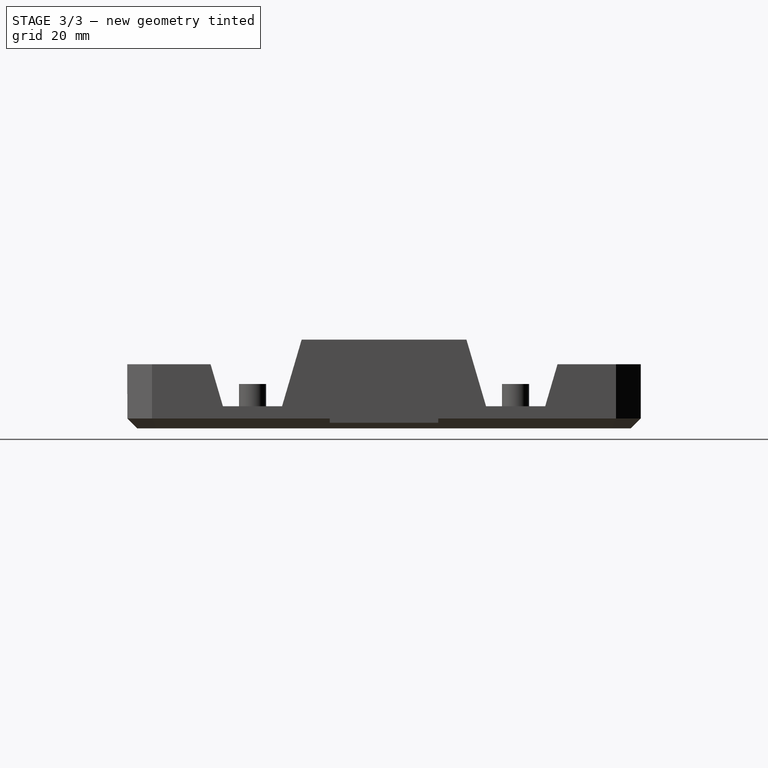
[diagram: stage 3 of 3 — right view after this stage's code; geometry added in this stage tinted green]
FEATURE [PartDesign::Pad] Pad007  label="Assembly_handle"
  BaseFeature = -> PolarPattern001
  Direction = (-1,4e-16,-2e-16)
  Length = 1.8
  Length2 = 10
  Profile = -> Sketch021
  ReferenceAxis = -> Sketch021 [N_Axis]
  Refine = true
  Reversed = true
  Type = 0
FEATURE [PartDesign::Mirrored] Mirrored004
  BaseFeature = -> Pad007
  MirrorPlane = -> YZ_Plane
  Originals = -> [Pad007]
  Refine = true
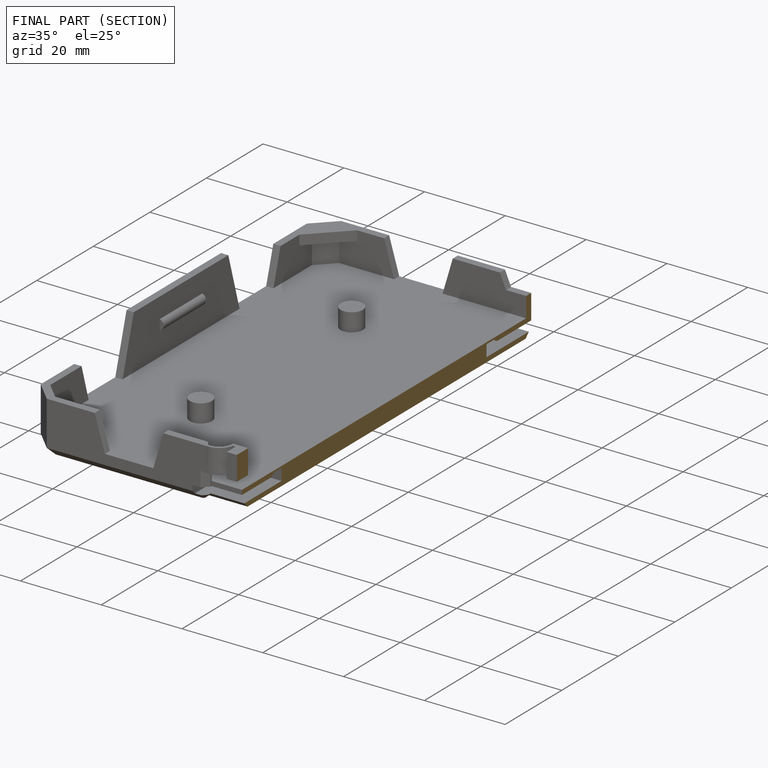
[diagram: finished part — half-section view (interior)]
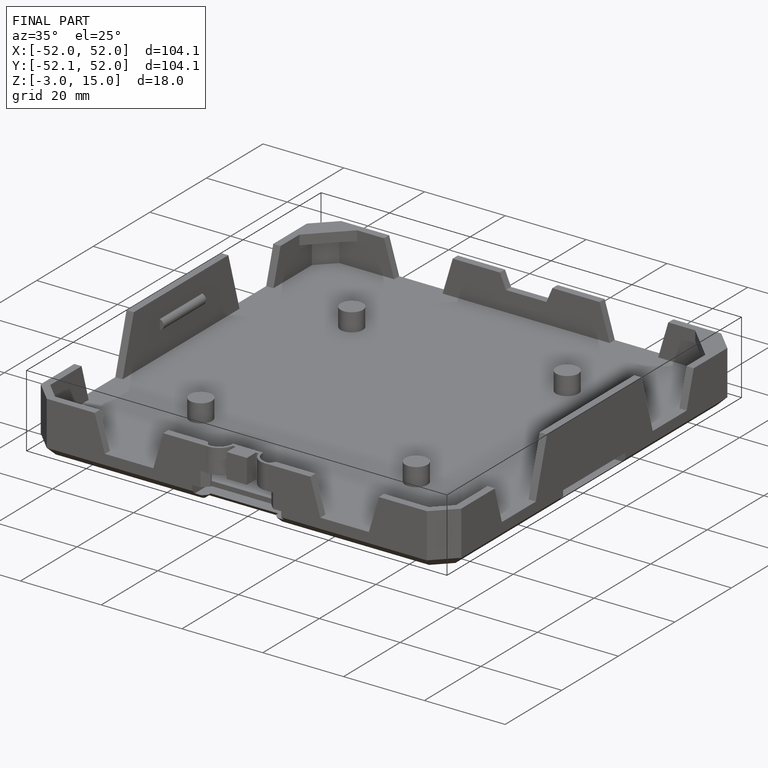
[diagram: finished part — iso view with bounding-box wireframe]
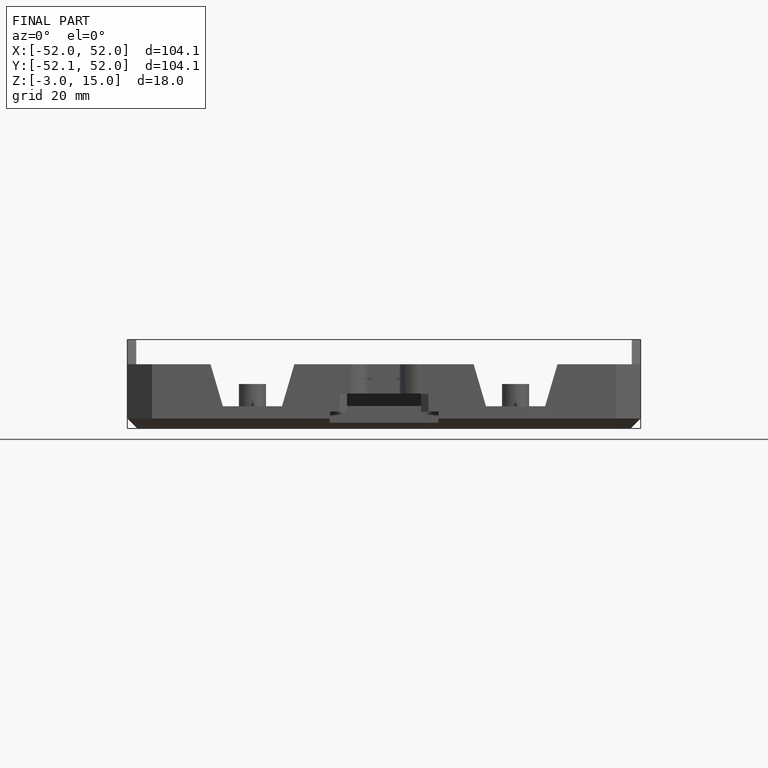
[diagram: finished part — front view with bounding-box wireframe]
